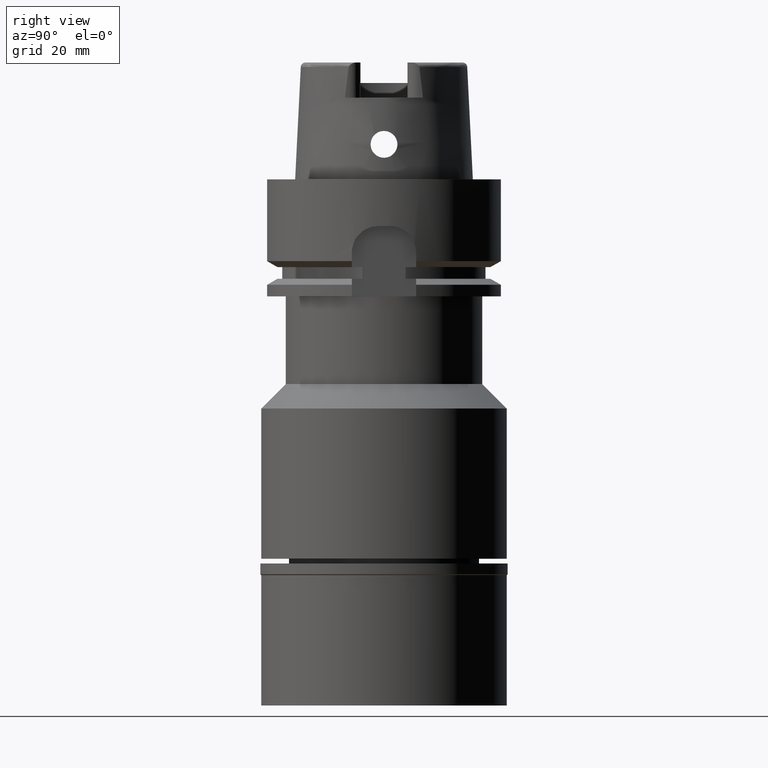
[diagram: clean part render]
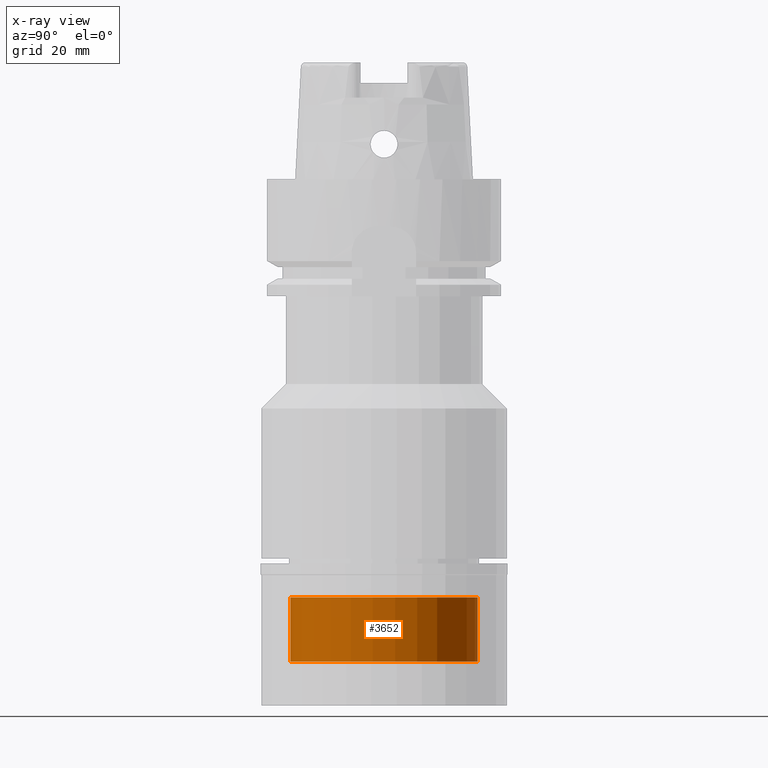
[diagram: x-ray — body ghosted, one internal face saturated and labeled with its STEP entity id]
A machine part, right view, then the same camera in x-ray: the body is ghosted and one INTERNAL B-rep face — a face not visible from any outside direction — is saturated and labeled: STEP entity #3652.
In plain terms, the highlighted cylindrical surface (partial cylindrical patch) has radius 16 mm, axis along (0, 0, -1).
Its self-contained STEP definition (entity closure, byte-faithful):
#125 = VERTEX_POINT ( 'NONE', #447 ) ;
#168 = CARTESIAN_POINT ( 'NONE',  ( 0.0000000000000000000, 1.532339307432999848E-14, 25.12500000000000000 ) ) ;
#197 = CYLINDRICAL_SURFACE ( 'NONE', #4587, 16.00000000000000000 ) ;
#227 = FACE_OUTER_BOUND ( 'NONE', #1971, .T. ) ;
#276 = CIRCLE ( 'NONE', #2816, 16.00000000000000000 ) ;
#319 = CARTESIAN_POINT ( 'NONE',  ( 0.0000000000000000000, -16.00000000000000000, -71.50000000000000000 ) ) ;
#367 = CARTESIAN_POINT ( 'NONE',  ( 0.0000000000000000000, 16.00000000000000000, -82.50000000000000000 ) ) ;
#447 = CARTESIAN_POINT ( 'NONE',  ( 0.0000000000000000000, 16.00000000000000000, -71.50000000000000000 ) ) ;
#643 = DIRECTION ( 'NONE',  ( 0.0000000000000000000, 0.0000000000000000000, -1.000000000000000000 ) ) ;
#659 = ORIENTED_EDGE ( 'NONE', *, *, #4323, .F. ) ;
#684 = VERTEX_POINT ( 'NONE', #367 ) ;
#758 = CARTESIAN_POINT ( 'NONE',  ( 0.0000000000000000000, -16.00000000000000000, -71.50000000000000000 ) ) ;
#1456 = DIRECTION ( 'NONE',  ( 0.0000000000000000000, 0.0000000000000000000, -1.000000000000000000 ) ) ;
#1516 = CARTESIAN_POINT ( 'NONE',  ( 0.0000000000000000000, 1.532339307432999848E-14, -71.50000000000000000 ) ) ;
#1525 = DIRECTION ( 'NONE',  ( 0.0000000000000000000, -1.000000000000000000, 0.0000000000000000000 ) ) ;
#1527 = DIRECTION ( 'NONE',  ( 0.0000000000000000000, 0.0000000000000000000, -1.000000000000000000 ) ) ;
#1539 = DIRECTION ( 'NONE',  ( 0.0000000000000000000, 1.000000000000000000, 0.0000000000000000000 ) ) ;
#1552 = LINE ( 'NONE', #319, #2438 ) ;
#1971 = EDGE_LOOP ( 'NONE', ( #2425, #2196, #4183, #659 ) ) ;
#2196 = ORIENTED_EDGE ( 'NONE', *, *, #4052, .T. ) ;
#2425 = ORIENTED_EDGE ( 'NONE', *, *, #3426, .T. ) ;
#2438 = VECTOR ( 'NONE', #1527, 1000.000000000000000 ) ;
#2776 = DIRECTION ( 'NONE',  ( 0.0000000000000000000, 0.0000000000000000000, -1.000000000000000000 ) ) ;
#2816 = AXIS2_PLACEMENT_3D ( 'NONE', #3720, #5387, #1525 ) ;
#2877 = LINE ( 'NONE', #5330, #3482 ) ;
#2975 = EDGE_CURVE ( 'NONE', #4949, #684, #276, .T. ) ;
#2978 = VERTEX_POINT ( 'NONE', #758 ) ;
#2996 = CIRCLE ( 'NONE', #3793, 16.00000000000000000 ) ;
#3426 = EDGE_CURVE ( 'NONE', #125, #2978, #2996, .T. ) ;
#3482 = VECTOR ( 'NONE', #2776, 1000.000000000000000 ) ;
#3652 = ADVANCED_FACE ( 'NONE', ( #227 ), #197, .T. ) ;
#3720 = CARTESIAN_POINT ( 'NONE',  ( 0.0000000000000000000, 1.532339307432999848E-14, -82.50000000000000000 ) ) ;
#3793 = AXIS2_PLACEMENT_3D ( 'NONE', #1516, #643, #1539 ) ;
#4052 = EDGE_CURVE ( 'NONE', #2978, #4949, #1552, .T. ) ;
#4183 = ORIENTED_EDGE ( 'NONE', *, *, #2975, .T. ) ;
#4323 = EDGE_CURVE ( 'NONE', #125, #684, #2877, .T. ) ;
#4587 = AXIS2_PLACEMENT_3D ( 'NONE', #168, #1456, #5298 ) ;
#4949 = VERTEX_POINT ( 'NONE', #5242 ) ;
#5242 = CARTESIAN_POINT ( 'NONE',  ( 0.0000000000000000000, -16.00000000000000000, -82.50000000000000000 ) ) ;
#5298 = DIRECTION ( 'NONE',  ( 0.0000000000000000000, -1.000000000000000000, 0.0000000000000000000 ) ) ;
#5330 = CARTESIAN_POINT ( 'NONE',  ( 0.0000000000000000000, 16.00000000000000000, -71.50000000000000000 ) ) ;
#5387 = DIRECTION ( 'NONE',  ( 0.0000000000000000000, 0.0000000000000000000, 1.000000000000000000 ) ) ;